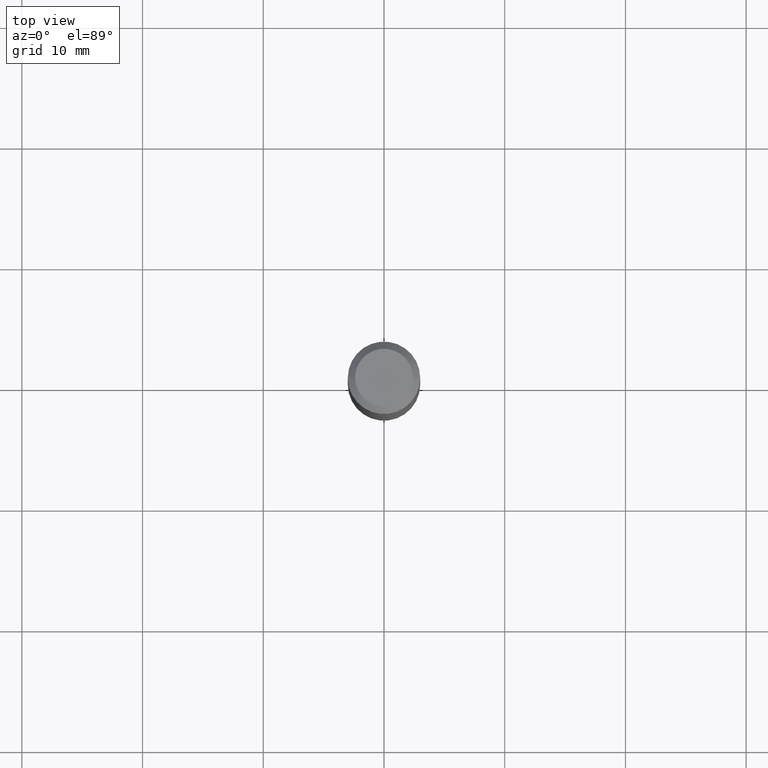
[diagram: clean part render]
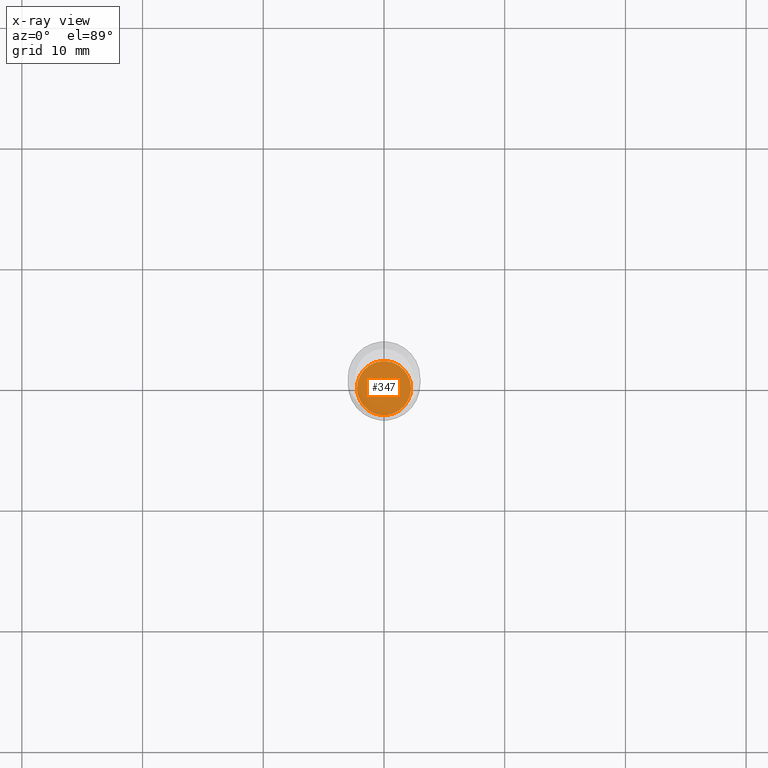
[diagram: x-ray — body ghosted, one internal face saturated and labeled with its STEP entity id]
A machine part, top view, then the same camera in x-ray: the body is ghosted and one INTERNAL B-rep face — a face not visible from any outside direction — is saturated and labeled: STEP entity #347.
In plain terms, the highlighted planar face has unit normal (-0, 0, 1).
Its self-contained STEP definition (entity closure, byte-faithful):
#9 = VERTEX_POINT ( 'NONE', #100 ) ;
#18 = FACE_OUTER_BOUND ( 'NONE', #328, .T. ) ;
#50 = EDGE_CURVE ( 'NONE', #379, #9, #479, .T. ) ;
#59 = DIRECTION ( 'NONE',  ( 1.000000000000000000, -6.982962677686264344E-15, 0.000000000000000000 ) ) ;
#83 = CARTESIAN_POINT ( 'NONE',  ( 4.813171704333585481E-29, -6.871933571111078805E-15, -1.968199999999999950 ) ) ;
#100 = CARTESIAN_POINT ( 'NONE',  ( -0.08809999999999999776, -6.243296193732320441E-15, -1.968199999999999950 ) ) ;
#173 = CARTESIAN_POINT ( 'NONE',  ( 4.813171704333585481E-29, -6.871933571111078805E-15, -1.968199999999999950 ) ) ;
#214 = DIRECTION ( 'NONE',  ( 1.000000000000000000, -6.982962677686264344E-15, 0.000000000000000000 ) ) ;
#226 = CIRCLE ( 'NONE', #516, 0.08809999999999999776 ) ;
#241 = CARTESIAN_POINT ( 'NONE',  ( 0.08809999999999999776, -7.487132583015239540E-15, -1.968199999999999950 ) ) ;
#323 = DIRECTION ( 'NONE',  ( -2.438088387897960049E-29, 3.491481338843145188E-15, 1.000000000000000000 ) ) ;
#325 = DIRECTION ( 'NONE',  ( 1.000000000000000000, -6.982962677686265922E-15, 4.876176775795935793E-29 ) ) ;
#328 = EDGE_LOOP ( 'NONE', ( #403, #333 ) ) ;
#333 = ORIENTED_EDGE ( 'NONE', *, *, #493, .F. ) ;
#347 = ADVANCED_FACE ( 'NONE', ( #18 ), #494, .F. ) ;
#379 = VERTEX_POINT ( 'NONE', #241 ) ;
#403 = ORIENTED_EDGE ( 'NONE', *, *, #50, .F. ) ;
#421 = CARTESIAN_POINT ( 'NONE',  ( 4.813171704333585481E-29, -6.871933571111078805E-15, -1.968199999999999950 ) ) ;
#427 = AXIS2_PLACEMENT_3D ( 'NONE', #83, #323, #325 ) ;
#468 = DIRECTION ( 'NONE',  ( -2.445468806185136597E-29, 3.491481338843145583E-15, 1.000000000000000000 ) ) ;
#470 = AXIS2_PLACEMENT_3D ( 'NONE', #421, #468, #214 ) ;
#479 = CIRCLE ( 'NONE', #470, 0.08809999999999999776 ) ;
#493 = EDGE_CURVE ( 'NONE', #9, #379, #226, .T. ) ;
#494 = PLANE ( 'NONE',  #427 ) ;
#499 = DIRECTION ( 'NONE',  ( -2.445468806185136597E-29, 3.491481338843145583E-15, 1.000000000000000000 ) ) ;
#516 = AXIS2_PLACEMENT_3D ( 'NONE', #173, #499, #59 ) ;